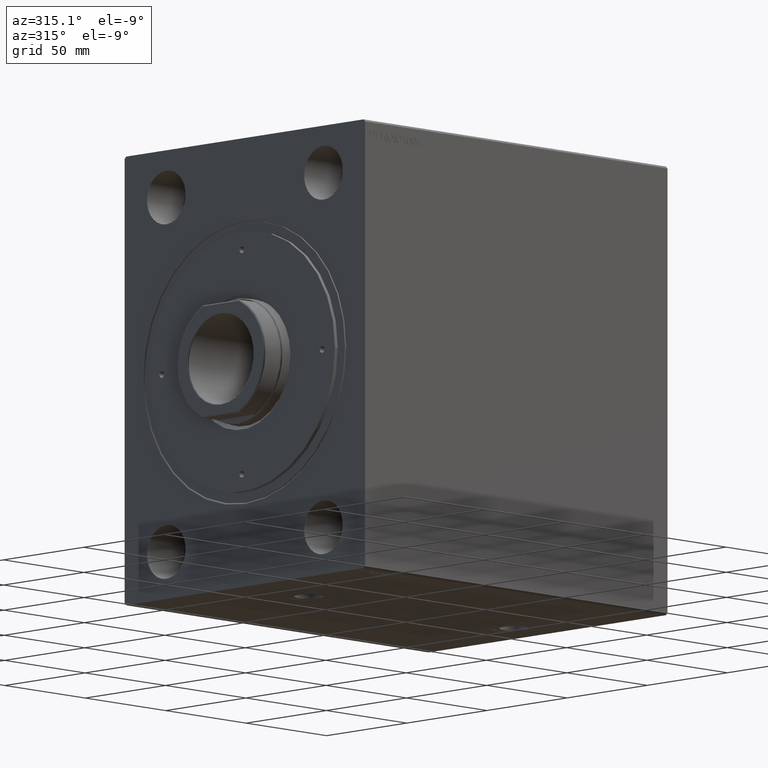
[diagram: clean part render]
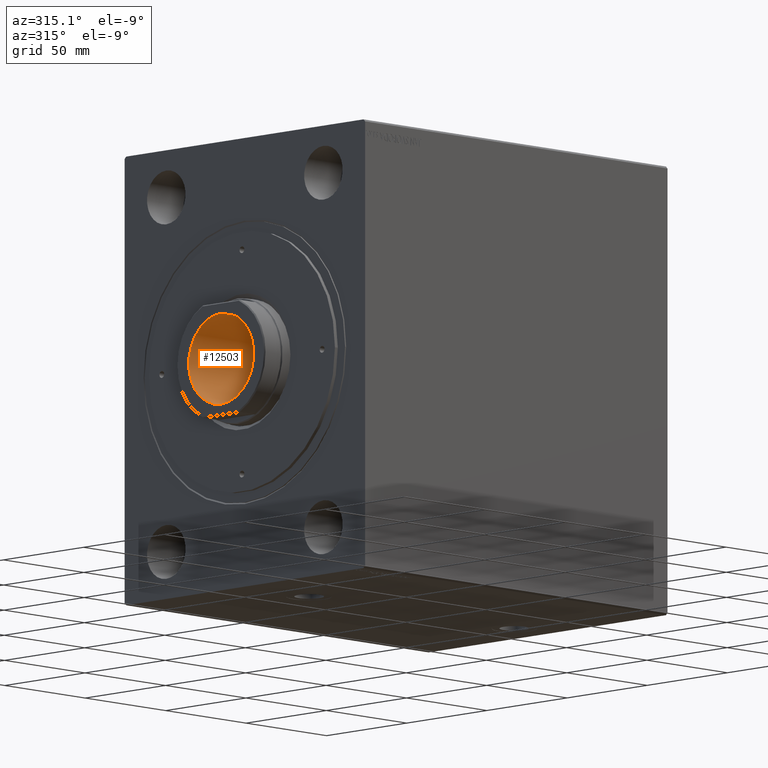
[diagram: same view with one face highlighted and labeled with its STEP entity id]
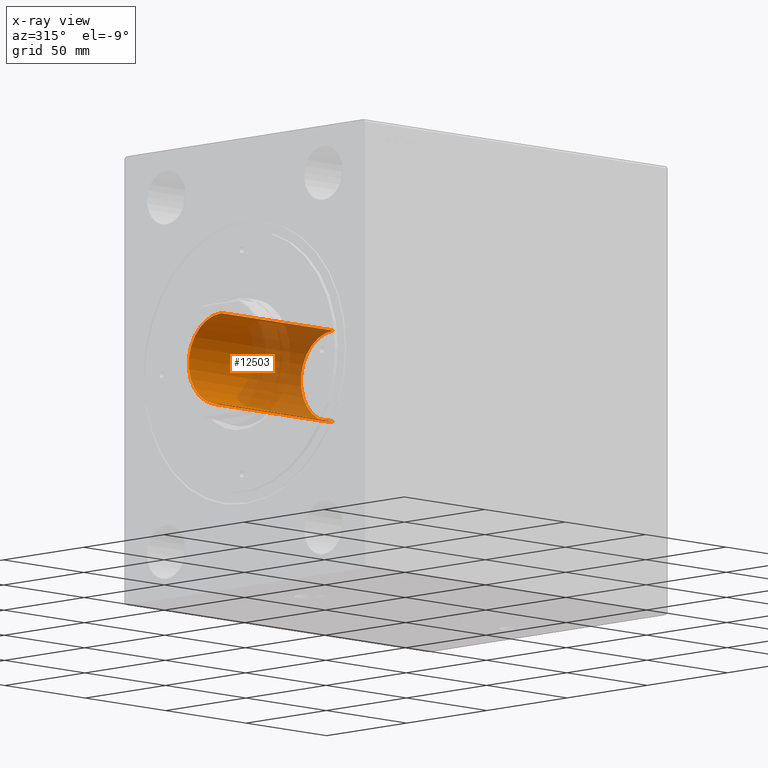
[diagram: x-ray of the same camera — body ghosted, the highlighted face saturated]
A machine part, auxiliary view. The second image highlights one B-rep face of the part: STEP entity #12503.
The next image is the same camera in x-ray: the body ghosted, the highlighted face saturated — about 52% of this face is hidden behind the body in this view.
In plain terms, the highlighted cylindrical surface (partial cylindrical patch) has radius 20.25 mm, axis along (-1, 0, 0).
Its self-contained STEP definition (entity closure, byte-faithful):
#1787 = CIRCLE ( 'NONE', #41568, 20.24999999999998224 ) ;
#2376 = VERTEX_POINT ( 'NONE', #11017 ) ;
#2502 = LINE ( 'NONE', #43207, #17734 ) ;
#2638 = DIRECTION ( 'NONE',  ( -0.000000000000000000, -0.000000000000000000, 1.000000000000000000 ) ) ;
#4214 = VERTEX_POINT ( 'NONE', #41686 ) ;
#5128 = ORIENTED_EDGE ( 'NONE', *, *, #5831, .T. ) ;
#5831 = EDGE_CURVE ( 'NONE', #2376, #12571, #9965, .T. ) ;
#9965 = LINE ( 'NONE', #10611, #18621 ) ;
#10176 = ORIENTED_EDGE ( 'NONE', *, *, #15499, .T. ) ;
#10611 = CARTESIAN_POINT ( 'NONE',  ( 20.24999999999998934, 0.000000000000000000, 169.7000000000000171 ) ) ;
#11017 = CARTESIAN_POINT ( 'NONE',  ( 20.24999999999998224, 0.000000000000000000, 99.70000000000001705 ) ) ;
#12503 = ADVANCED_FACE ( 'NONE', ( #12851 ), #36648, .F. ) ;
#12571 = VERTEX_POINT ( 'NONE', #20827 ) ;
#12851 = FACE_OUTER_BOUND ( 'NONE', #18268, .T. ) ;
#15499 = EDGE_CURVE ( 'NONE', #12571, #22213, #18505, .T. ) ;
#16401 = CARTESIAN_POINT ( 'NONE',  ( 0.000000000000000000, 0.000000000000000000, 169.7000000000000171 ) ) ;
#17559 = EDGE_CURVE ( 'NONE', #2376, #4214, #1787, .T. ) ;
#17734 = VECTOR ( 'NONE', #22501, 1000.000000000000000 ) ;
#18268 = EDGE_LOOP ( 'NONE', ( #37514, #43816, #5128, #10176 ) ) ;
#18505 = CIRCLE ( 'NONE', #32697, 20.24999999999998934 ) ;
#18621 = VECTOR ( 'NONE', #27075, 1000.000000000000000 ) ;
#18685 = AXIS2_PLACEMENT_3D ( 'NONE', #16401, #2638, #26412 ) ;
#19455 = DIRECTION ( 'NONE',  ( 1.000000000000000000, 0.000000000000000000, 0.000000000000000000 ) ) ;
#20827 = CARTESIAN_POINT ( 'NONE',  ( 20.24999999999998934, 0.000000000000000000, 169.4000000000000625 ) ) ;
#22213 = VERTEX_POINT ( 'NONE', #42480 ) ;
#22501 = DIRECTION ( 'NONE',  ( -0.000000000000000000, -0.000000000000000000, 1.000000000000000000 ) ) ;
#22779 = DIRECTION ( 'NONE',  ( -0.000000000000000000, -0.000000000000000000, 1.000000000000000000 ) ) ;
#26412 = DIRECTION ( 'NONE',  ( 1.000000000000000000, 0.000000000000000000, 0.000000000000000000 ) ) ;
#27075 = DIRECTION ( 'NONE',  ( -0.000000000000000000, -0.000000000000000000, 1.000000000000000000 ) ) ;
#29282 = CARTESIAN_POINT ( 'NONE',  ( 0.000000000000000000, 0.000000000000000000, 169.4000000000000625 ) ) ;
#32697 = AXIS2_PLACEMENT_3D ( 'NONE', #29282, #35514, #41979 ) ;
#35514 = DIRECTION ( 'NONE',  ( 0.000000000000000000, 0.000000000000000000, 1.000000000000000000 ) ) ;
#36648 = CYLINDRICAL_SURFACE ( 'NONE', #18685, 20.24999999999998934 ) ;
#36781 = CARTESIAN_POINT ( 'NONE',  ( 0.000000000000000000, 0.000000000000000000, 99.70000000000001705 ) ) ;
#37514 = ORIENTED_EDGE ( 'NONE', *, *, #39671, .F. ) ;
#39671 = EDGE_CURVE ( 'NONE', #4214, #22213, #2502, .T. ) ;
#41568 = AXIS2_PLACEMENT_3D ( 'NONE', #36781, #22779, #19455 ) ;
#41686 = CARTESIAN_POINT ( 'NONE',  ( -20.24999999999998224, 2.479909768273388328E-15, 99.70000000000001705 ) ) ;
#41979 = DIRECTION ( 'NONE',  ( 1.000000000000000000, 0.000000000000000000, 0.000000000000000000 ) ) ;
#42480 = CARTESIAN_POINT ( 'NONE',  ( -20.24999999999998934, 2.479909768273389117E-15, 169.4000000000000625 ) ) ;
#43207 = CARTESIAN_POINT ( 'NONE',  ( -20.24999999999998934, 2.479909768273389117E-15, 169.7000000000000171 ) ) ;
#43816 = ORIENTED_EDGE ( 'NONE', *, *, #17559, .F. ) ;